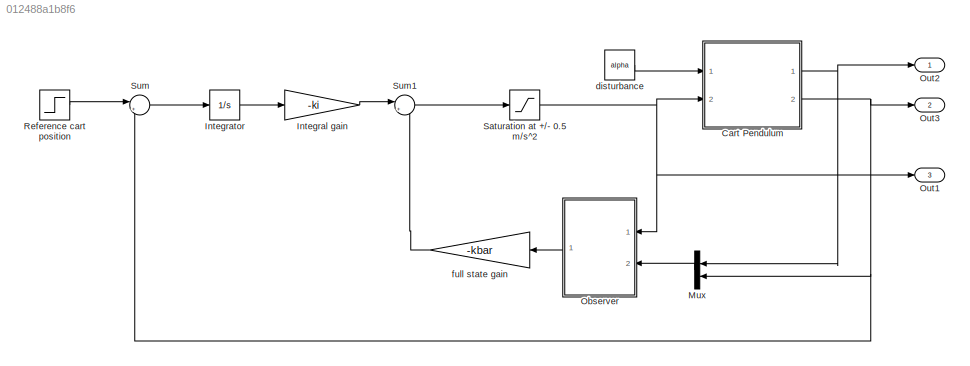
MODEL slx_012488a1b8f6
KIND model
CONFIG AbsTol = auto
CONFIG EnableMultiTasking = off
CONFIG FixedStep = auto
CONFIG MaxStep = auto
CONFIG MinStep = auto
CONFIG RelTol = 1e-3
CONFIG SampleTimeConstraint = Unconstrained
CONFIG Solver = VariableStepAuto
CONFIG SolverName = VariableStepAuto
CONFIG StartTime = 0.0
CONFIG StopTime = 10.0
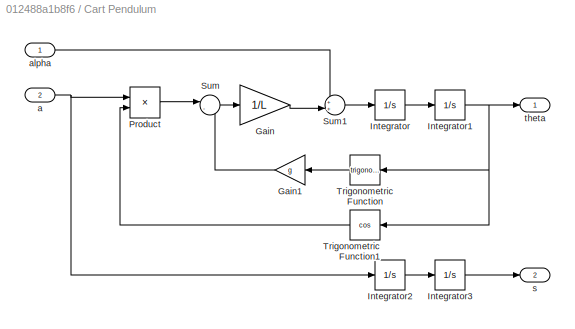
BLOCK [SubSystem] Cart Pendulum
  Ports = [2, 2]
  RequestExecContextInheritance = off
BLOCK [Gain] Cart Pendulum/Gain
  Gain = 1/L
  OutDataTypeStr = Inherit: Inherit via internal rule
  ParamDataTypeStr = Inherit: Inherit via internal rule
  SaturateOnIntegerOverflow = off
BLOCK [Gain] Cart Pendulum/Gain1
  Gain = g
  OutDataTypeStr = Inherit: Inherit via internal rule
  ParamDataTypeStr = Inherit: Inherit via internal rule
  SaturateOnIntegerOverflow = off
BLOCK [Integrator] Cart Pendulum/Integrator
  Ports = [1, 1]
BLOCK [Integrator] Cart Pendulum/Integrator1
  Ports = [1, 1]
BLOCK [Integrator] Cart Pendulum/Integrator2
  Ports = [1, 1]
BLOCK [Integrator] Cart Pendulum/Integrator3
  Ports = [1, 1]
BLOCK [Product] Cart Pendulum/Product
  InputSameDT = off
  OutDataTypeStr = Inherit: Inherit via internal rule
  Ports = [2, 1]
  RndMeth = Floor
  SaturateOnIntegerOverflow = off
BLOCK [Sum] Cart Pendulum/Sum
  IconShape = round
  InputSameDT = off
  Inputs = |-+
  OutDataTypeStr = Inherit: Inherit via internal rule
  Ports = [2, 1]
  SaturateOnIntegerOverflow = off
BLOCK [Sum] Cart Pendulum/Sum1
  IconShape = round
  InputSameDT = off
  Inputs = ++|
  OutDataTypeStr = Inherit: Inherit via internal rule
  Ports = [2, 1]
  SaturateOnIntegerOverflow = off
BLOCK [Trigonometry] Cart Pendulum/Trigonometric Function
  Ports = [1, 1]
BLOCK [Trigonometry] Cart Pendulum/Trigonometric Function1
  Operator = cos
  Ports = [1, 1]
BLOCK [Inport] Cart Pendulum/a
  IconDisplay = Port number
  Port = 2
BLOCK [Inport] Cart Pendulum/alpha
  IconDisplay = Port number
BLOCK [Outport] Cart Pendulum/s
  IconDisplay = Port number
  Port = 2
BLOCK [Outport] Cart Pendulum/theta
  IconDisplay = Port number
BLOCK [Gain] Integral gain
  Gain = -ki
  Multiplication = Matrix(K*u)
  OutDataTypeStr = Inherit: Inherit via internal rule
  ParamDataTypeStr = Inherit: Inherit via internal rule
  SaturateOnIntegerOverflow = off
BLOCK [Integrator] Integrator
  Ports = [1, 1]
BLOCK [Mux] Mux
  DisplayOption = bar
  Inputs = 2
  Ports = [2, 1]
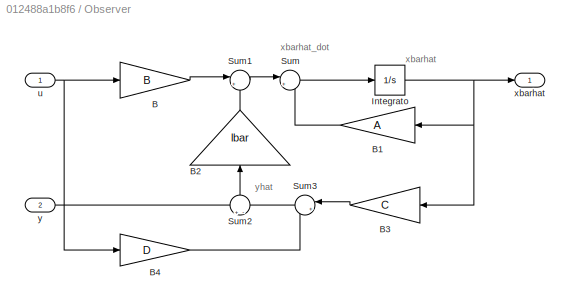
BLOCK [SubSystem] Observer
  Ports = [2, 1]
  RequestExecContextInheritance = off
BLOCK [Gain] Observer/B
  Gain = B
  Multiplication = Matrix(K*u)
  OutDataTypeStr = Inherit: Inherit via internal rule
  ParamDataTypeStr = Inherit: Inherit via internal rule
  SaturateOnIntegerOverflow = off
BLOCK [Gain] Observer/B1
  Gain = A
  Multiplication = Matrix(K*u)
  OutDataTypeStr = Inherit: Inherit via internal rule
  ParamDataTypeStr = Inherit: Inherit via internal rule
  SaturateOnIntegerOverflow = off
BLOCK [Gain] Observer/B2
  Gain = lbar
  Multiplication = Matrix(K*u)
  OutDataTypeStr = Inherit: Inherit via internal rule
  ParamDataTypeStr = Inherit: Inherit via internal rule
  SaturateOnIntegerOverflow = off
BLOCK [Gain] Observer/B3
  Gain = C
  Multiplication = Matrix(K*u)
  OutDataTypeStr = Inherit: Inherit via internal rule
  ParamDataTypeStr = Inherit: Inherit via internal rule
  SaturateOnIntegerOverflow = off
BLOCK [Gain] Observer/B4
  Gain = D
  Multiplication = Matrix(K*u)
  OutDataTypeStr = Inherit: Inherit via internal rule
  ParamDataTypeStr = Inherit: Inherit via internal rule
  SaturateOnIntegerOverflow = off
BLOCK [Integrator] Observer/Integrato
  InitialCondition = ICo
  Ports = [1, 1]
BLOCK [Sum] Observer/Sum
  IconShape = round
  InputSameDT = off
  Inputs = |++
  OutDataTypeStr = Inherit: Inherit via internal rule
  Ports = [2, 1]
  SaturateOnIntegerOverflow = off
BLOCK [Sum] Observer/Sum1
  IconShape = round
  InputSameDT = off
  Inputs = |++
  OutDataTypeStr = Inherit: Inherit via internal rule
  Ports = [2, 1]
  SaturateOnIntegerOverflow = off
BLOCK [Sum] Observer/Sum2
  IconShape = round
  InputSameDT = off
  Inputs = +-
  OutDataTypeStr = Inherit: Inherit via internal rule
  Ports = [2, 1]
  SaturateOnIntegerOverflow = off
BLOCK [Sum] Observer/Sum3
  IconShape = round
  InputSameDT = off
  Inputs = |++
  OutDataTypeStr = Inherit: Inherit via internal rule
  Ports = [2, 1]
  SaturateOnIntegerOverflow = off
BLOCK [Inport] Observer/u
  IconDisplay = Port number
BLOCK [Outport] Observer/xbarhat
  IconDisplay = Port number
BLOCK [Inport] Observer/y
  IconDisplay = Port number
  Port = 2
BLOCK [Outport] Out1
  IconDisplay = Port number
  Port = 3
  SignalName = a(t)
BLOCK [Outport] Out2
  IconDisplay = Port number
  SignalName = theta(t)
BLOCK [Outport] Out3
  IconDisplay = Port number
  Port = 2
  SignalName = s(t)
BLOCK [Step] Reference cart position
  SampleTime = 0
BLOCK [Saturate] Saturation at +//- 0.5 m//s^2
  InputPortMap = u0
  Ports = [1, 1]
BLOCK [Sum] Sum
  IconShape = round
  InputSameDT = off
  Inputs = |+-
  OutDataTypeStr = Inherit: Inherit via internal rule
  Ports = [2, 1]
  SaturateOnIntegerOverflow = off
BLOCK [Sum] Sum1
  IconShape = round
  InputSameDT = off
  Inputs = |++
  OutDataTypeStr = Inherit: Inherit via internal rule
  Ports = [2, 1]
  SaturateOnIntegerOverflow = off
BLOCK [Constant] disturbance
  Value = alpha
BLOCK [Gain] full state gain
  Gain = -kbar
  Multiplication = Matrix(K*u)
  OutDataTypeStr = Inherit: Inherit via internal rule
  ParamDataTypeStr = Inherit: Inherit via internal rule
  SaturateOnIntegerOverflow = off
ANNOTATION Observer: xbarhat
ANNOTATION Observer: xbarhat_dot
ANNOTATION Observer: yhat
LINE Cart Pendulum/Gain1:1 -> Cart Pendulum/Sum:2
LINE Cart Pendulum/Gain:1 -> Cart Pendulum/Sum1:2
NET Cart Pendulum/Integrator1:1 -> Cart Pendulum/Trigonometric Function1:1, Cart Pendulum/Trigonometric Function:1, Cart Pendulum/theta:1
LINE Cart Pendulum/Integrator2:1 -> Cart Pendulum/Integrator3:1
LINE Cart Pendulum/Integrator3:1 -> Cart Pendulum/s:1
LINE Cart Pendulum/Integrator:1 -> Cart Pendulum/Integrator1:1
LINE Cart Pendulum/Product:1 -> Cart Pendulum/Sum:1
LINE Cart Pendulum/Sum1:1 -> Cart Pendulum/Integrator:1
LINE Cart Pendulum/Sum:1 -> Cart Pendulum/Gain:1
LINE Cart Pendulum/Trigonometric Function1:1 -> Cart Pendulum/Product:2
LINE Cart Pendulum/Trigonometric Function:1 -> Cart Pendulum/Gain1:1
NET Cart Pendulum/a:1 -> Cart Pendulum/Integrator2:1, Cart Pendulum/Product:1
LINE Cart Pendulum/alpha:1 -> Cart Pendulum/Sum1:1
NET Cart Pendulum:1 -> Mux:1, Out2:1
NET Cart Pendulum:2 -> Mux:2, Out3:1, Sum:2
LINE Integral gain:1 -> Sum1:1
LINE Integrator:1 -> Integral gain:1
LINE Mux:1 -> Observer:2
LINE Observer/B1:1 -> Observer/Sum:2
LINE Observer/B2:1 -> Observer/Sum1:2
LINE Observer/B3:1 -> Observer/Sum3:1
LINE Observer/B4:1 -> Observer/Sum3:2
LINE Observer/B:1 -> Observer/Sum1:1
NET Observer/Integrato:1 -> Observer/B1:1, Observer/B3:1, Observer/xbarhat:1
LINE Observer/Sum1:1 -> Observer/Sum:1
LINE Observer/Sum2:1 -> Observer/B2:1
LINE Observer/Sum3:1 -> Observer/Sum2:2
LINE Observer/Sum:1 -> Observer/Integrato:1
NET Observer/u:1 -> Observer/B4:1, Observer/B:1
LINE Observer/y:1 -> Observer/Sum2:1
LINE Observer:1 -> full state gain:1
LINE Reference cart position:1 -> Sum:1
NET Saturation at +//- 0.5 m//s^2:1 -> Cart Pendulum:2, Observer:1, Out1:1
LINE Sum1:1 -> Saturation at +//- 0.5 m//s^2:1
LINE Sum:1 -> Integrator:1
LINE disturbance:1 -> Cart Pendulum:1
LINE full state gain:1 -> Sum1:2
note: NET lines group one-source signal fan-out (src -> all destinations, sorted); 1:1 wires keep LINE
